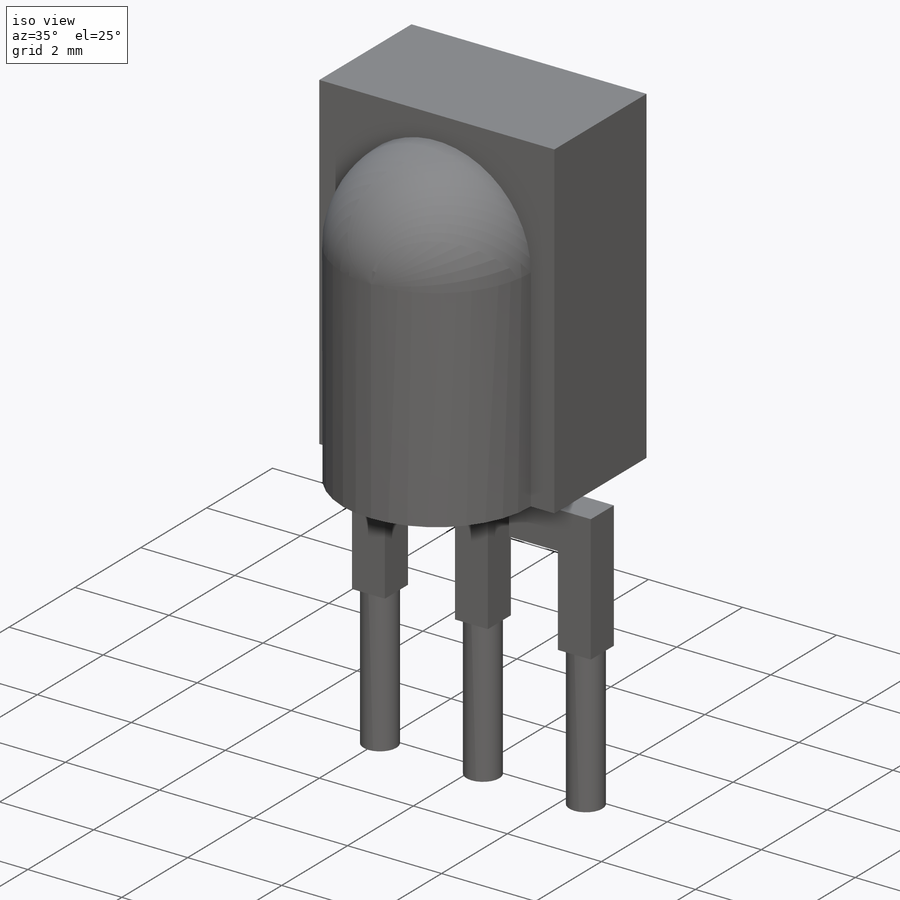
[diagram: iso view]
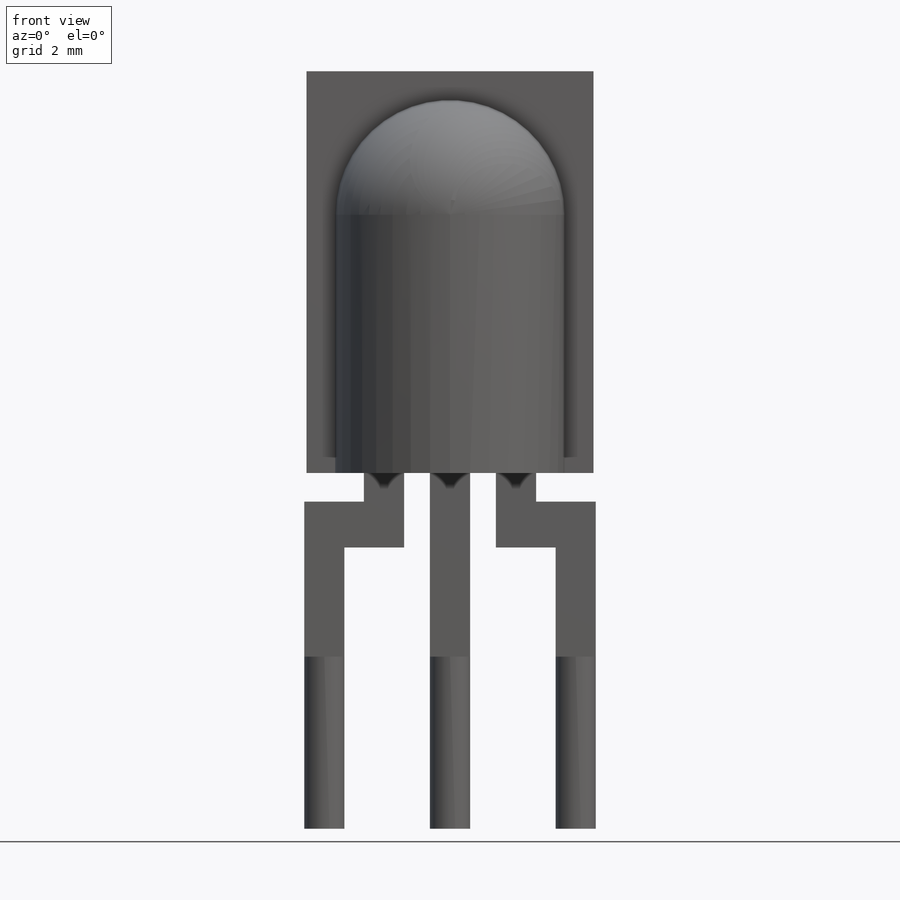
[diagram: front view]
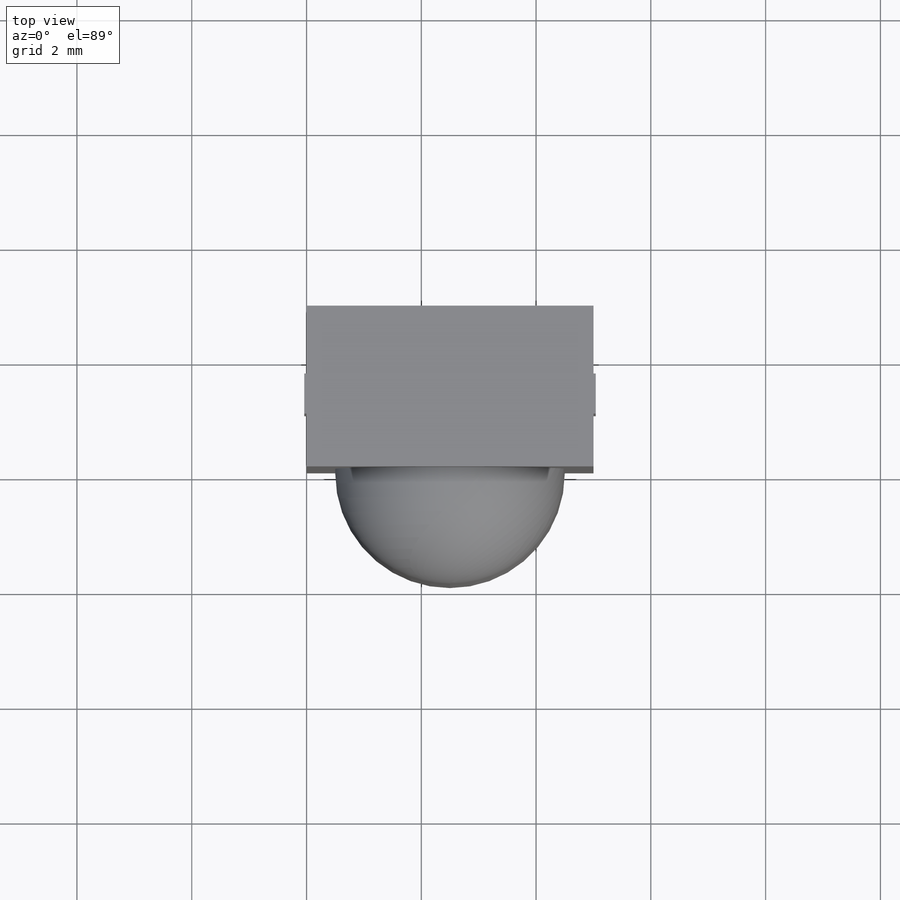
[diagram: top view]
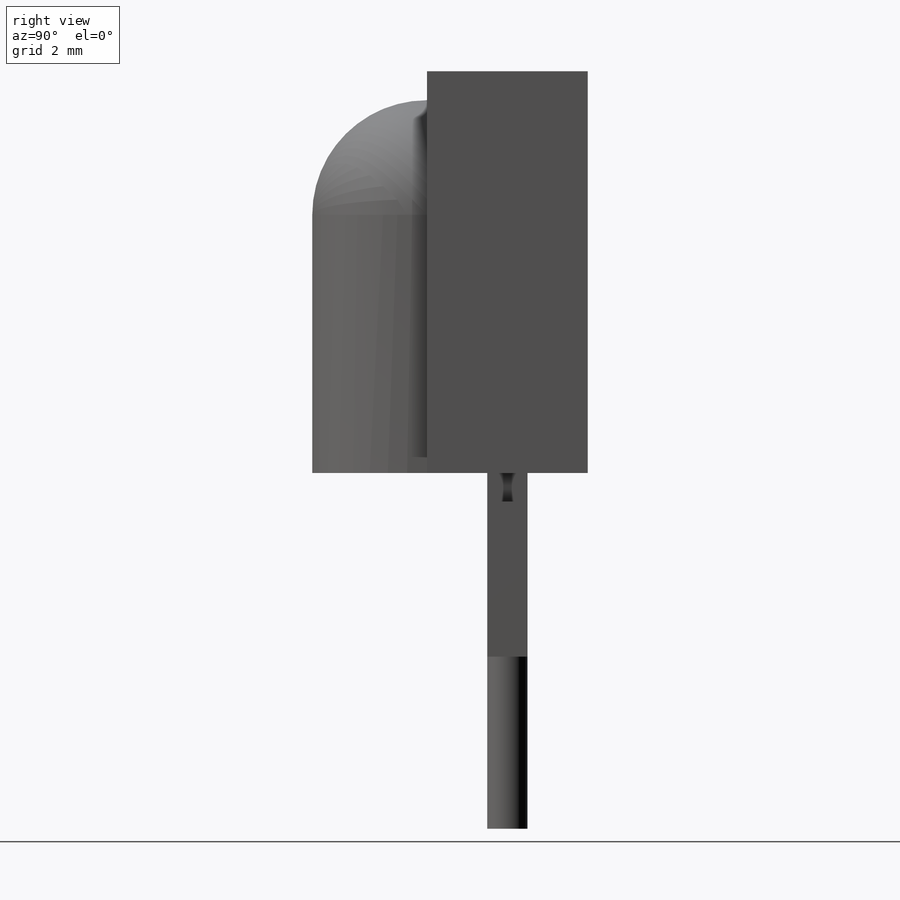
[diagram: right view]
SOLIDWORKS PART (.sldprt)
format: sldprt  version: not decoded by parser v0  size: 274,944 bytes
history: native  units: mm
features: sketch x6, extrude x6, plane x3, material x1, fillet x1 (+10 scaffold rows collapsed)
feature tree (27):
  scaffold x10  (default folders/planes/origin — collapsed)
  material  "Materiale <non specificato>"
  plane  "Piano frontale"
  plane  "Piano superiore"
  plane  "Piano destro"
  sketch  "Schizzo1"  dims[D1=5.0mm D2=2.8mm]
  extrude  "Estrusione-Estrusione1"  Depth=7mm
  sketch  "Schizzo2"  dims[c1.D1=4.0mm c1.D2=2.0mm c1.D3=1.0mm c1.D4=3.0mm c1.D5=3.0mm c2.D1=4.5mm]
  extrude  "Estrusione-Estrusione2"  Depth=2mm
  fillet  "Raccordo1"  Radius=2mm
  sketch  "Schizzo3"  dims[D1=0.7mm D2=0.7mm D3=0.35mm D4=0.35mm]
  extrude  "Estrusione-Estrusione3"  Depth=0.5mm
  sketch  "Schizzo4"  dims[D1=0.35mm D2=2.54mm]
  extrude  "Estrusione-Estrusione4"  Depth=0.8mm
  sketch  "Schizzo5"  dims[D1=0.7mm D2=0.7mm]
  extrude  "Estrusione-Estrusione5"  Depth=1.9mm
  sketch  "Schizzo6"
  extrude  "Estrusione-Estrusione6"  Depth=3mm
decode coverage: 12 of 13 modeling features carry decoded parameters
note: suppression state not decoded; provenance and decode notes live in map.json
